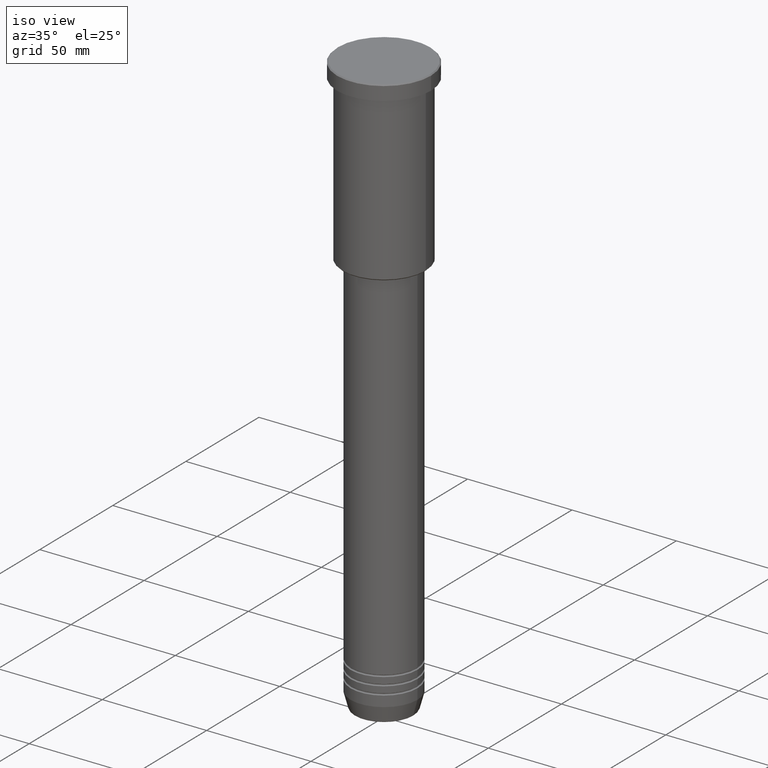
[diagram: clean part render]
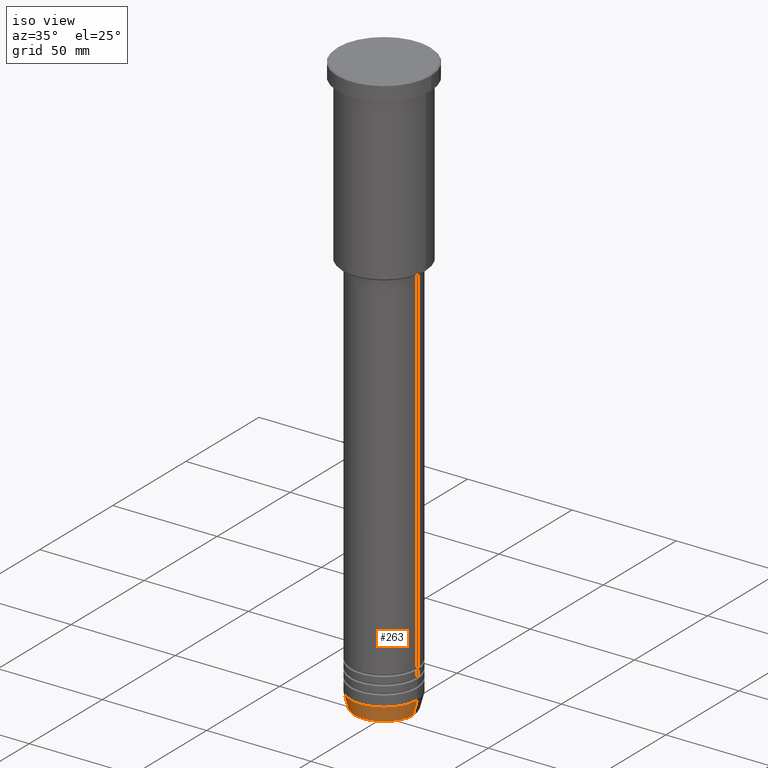
[diagram: same view with one face highlighted and labeled with its STEP entity id]
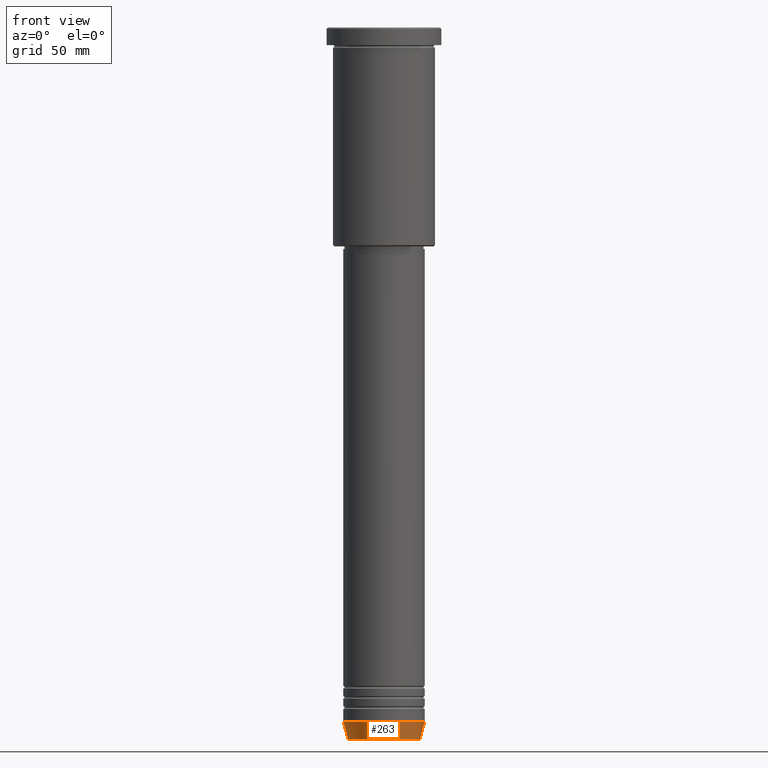
[diagram: same view with one face highlighted and labeled with its STEP entity id]
A machine part, iso view. The second image highlights one B-rep face of the part: STEP entity #263.
A second angle (front view) of the same face is appended — the face is thin or edge-on in the first view.
In plain terms, the highlighted conical surface has half-angle 15 deg.
Its self-contained STEP definition (entity closure, byte-faithful):
#14 = CARTESIAN_POINT ( 'NONE',  ( -16.00000000000000000, 1.959434878635765131E-15, -272.5000000000000000 ) ) ;
#104 = EDGE_CURVE ( 'NONE', #671, #1110, #381, .T. ) ;
#127 = EDGE_LOOP ( 'NONE', ( #1022, #772, #1044, #130 ) ) ;
#130 = ORIENTED_EDGE ( 'NONE', *, *, #662, .F. ) ;
#137 = VECTOR ( 'NONE', #911, 1000.000000000000000 ) ;
#149 = VECTOR ( 'NONE', #612, 1000.000000000000000 ) ;
#182 = CARTESIAN_POINT ( 'NONE',  ( 16.00000000000000000, 0.000000000000000000, -272.5000000000000000 ) ) ;
#258 = FACE_OUTER_BOUND ( 'NONE', #127, .T. ) ;
#263 = ADVANCED_FACE ( 'NONE', ( #258 ), #1006, .T. ) ;
#365 = CIRCLE ( 'NONE', #1183, 16.00000000000000000 ) ;
#367 = DIRECTION ( 'NONE',  ( 1.000000000000000000, 0.000000000000000000, 0.000000000000000000 ) ) ;
#373 = CARTESIAN_POINT ( 'NONE',  ( 16.00000000000000000, 0.000000000000000000, -272.5000000000000000 ) ) ;
#381 = CIRCLE ( 'NONE', #1039, 14.08968047592161632 ) ;
#437 = CARTESIAN_POINT ( 'NONE',  ( -16.00000000000000000, 1.959434878635765131E-15, -272.5000000000000000 ) ) ;
#438 = VERTEX_POINT ( 'NONE', #373 ) ;
#514 = DIRECTION ( 'NONE',  ( 1.000000000000000000, 0.000000000000000000, 0.000000000000000000 ) ) ;
#532 = CARTESIAN_POINT ( 'NONE',  ( -14.08968047592161632, 1.842461544110200874E-15, -279.6294095225512706 ) ) ;
#539 = DIRECTION ( 'NONE',  ( 1.000000000000000000, 0.000000000000000000, 0.000000000000000000 ) ) ;
#581 = EDGE_CURVE ( 'NONE', #671, #742, #1053, .T. ) ;
#612 = DIRECTION ( 'NONE',  ( -0.2588190451025213501, 3.169619151431772337E-17, 0.9659258262890680902 ) ) ;
#625 = DIRECTION ( 'NONE',  ( -0.000000000000000000, -0.000000000000000000, 1.000000000000000000 ) ) ;
#662 = EDGE_CURVE ( 'NONE', #742, #438, #365, .T. ) ;
#671 = VERTEX_POINT ( 'NONE', #532 ) ;
#718 = CARTESIAN_POINT ( 'NONE',  ( 14.08968047592161632, 0.000000000000000000, -279.6294095225512706 ) ) ;
#723 = DIRECTION ( 'NONE',  ( -0.000000000000000000, -0.000000000000000000, 1.000000000000000000 ) ) ;
#742 = VERTEX_POINT ( 'NONE', #14 ) ;
#768 = AXIS2_PLACEMENT_3D ( 'NONE', #997, #723, #367 ) ;
#772 = ORIENTED_EDGE ( 'NONE', *, *, #104, .T. ) ;
#776 = CARTESIAN_POINT ( 'NONE',  ( 0.000000000000000000, 0.000000000000000000, -279.6294095225512706 ) ) ;
#817 = EDGE_CURVE ( 'NONE', #1110, #438, #903, .T. ) ;
#903 = LINE ( 'NONE', #182, #137 ) ;
#911 = DIRECTION ( 'NONE',  ( 0.2588190451025213501, 0.000000000000000000, 0.9659258262890680902 ) ) ;
#980 = CARTESIAN_POINT ( 'NONE',  ( 0.000000000000000000, 0.000000000000000000, -272.5000000000000000 ) ) ;
#997 = CARTESIAN_POINT ( 'NONE',  ( 0.000000000000000000, 0.000000000000000000, -272.5000000000000000 ) ) ;
#1006 = CONICAL_SURFACE ( 'NONE', #768, 16.00000000000000000, 0.2617993877991500740 ) ;
#1022 = ORIENTED_EDGE ( 'NONE', *, *, #581, .F. ) ;
#1039 = AXIS2_PLACEMENT_3D ( 'NONE', #776, #1168, #514 ) ;
#1044 = ORIENTED_EDGE ( 'NONE', *, *, #817, .T. ) ;
#1053 = LINE ( 'NONE', #437, #149 ) ;
#1110 = VERTEX_POINT ( 'NONE', #718 ) ;
#1168 = DIRECTION ( 'NONE',  ( -0.000000000000000000, -0.000000000000000000, 1.000000000000000000 ) ) ;
#1183 = AXIS2_PLACEMENT_3D ( 'NONE', #980, #625, #539 ) ;